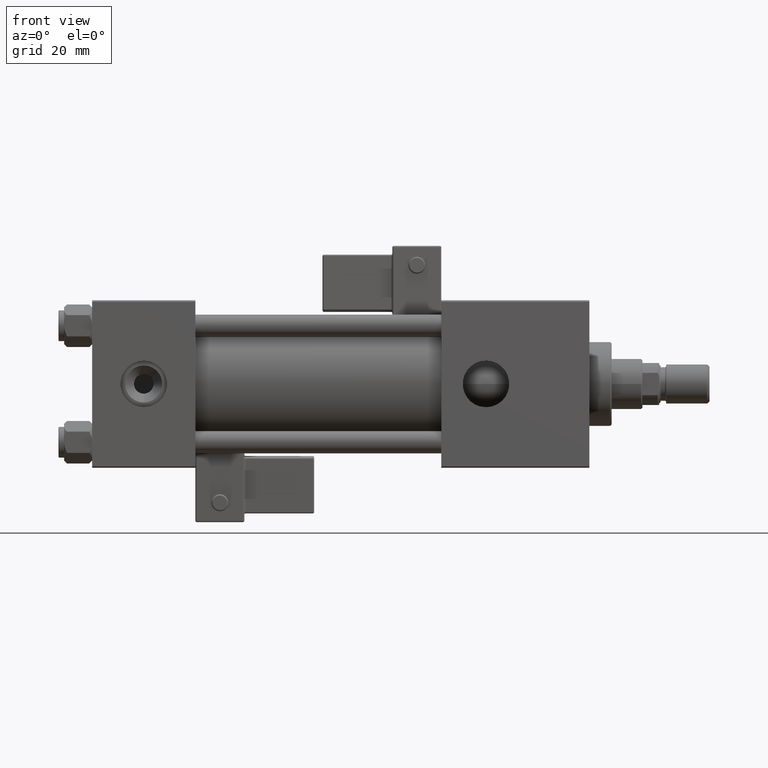
[diagram: clean part render]
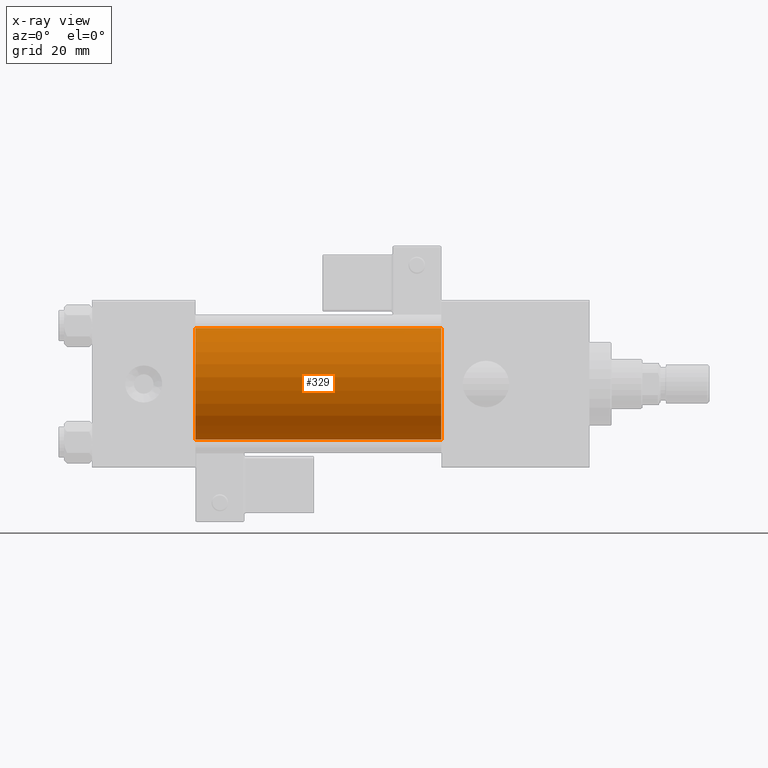
[diagram: x-ray — body ghosted, one internal face saturated and labeled with its STEP entity id]
A machine part, front view, then the same camera in x-ray: the body is ghosted and one INTERNAL B-rep face — a face not visible from any outside direction — is saturated and labeled: STEP entity #329.
In plain terms, the highlighted cylindrical surface (partial cylindrical patch) has radius 20 mm, axis along (-1, -0, -0).
Its self-contained STEP definition (entity closure, byte-faithful):
#329 = ADVANCED_FACE ( 'NONE', ( #16771 ), #7049, .F. ) ;
#370 = CARTESIAN_POINT ( 'NONE',  ( 125.0000000000000000, -1.527916156705042519E-16, -20.00000000000000000 ) ) ;
#971 = EDGE_CURVE ( 'NONE', #30841, #53575, #53900, .T. ) ;
#1319 = CARTESIAN_POINT ( 'NONE',  ( 125.0000000000000000, -2.602085213965210642E-15, 20.00000000000000000 ) ) ;
#6372 = DIRECTION ( 'NONE',  ( 0.000000000000000000, 0.000000000000000000, -1.000000000000000000 ) ) ;
#6906 = VERTEX_POINT ( 'NONE', #1319 ) ;
#7049 = CYLINDRICAL_SURFACE ( 'NONE', #16621, 20.00000000000000000 ) ;
#9793 = CIRCLE ( 'NONE', #51482, 20.00000000000000000 ) ;
#10779 = EDGE_CURVE ( 'NONE', #6906, #24375, #9793, .T. ) ;
#11228 = EDGE_CURVE ( 'NONE', #24375, #53575, #39529, .T. ) ;
#11292 = AXIS2_PLACEMENT_3D ( 'NONE', #52516, #44725, #44177 ) ;
#11307 = ORIENTED_EDGE ( 'NONE', *, *, #10779, .T. ) ;
#11482 = DIRECTION ( 'NONE',  ( -1.000000000000000000, -0.000000000000000000, -0.000000000000000000 ) ) ;
#13785 = LINE ( 'NONE', #43799, #53118 ) ;
#14546 = ORIENTED_EDGE ( 'NONE', *, *, #40329, .F. ) ;
#15140 = CARTESIAN_POINT ( 'NONE',  ( 125.0000000000000000, -1.527916156705042519E-16, -20.00000000000000000 ) ) ;
#16621 = AXIS2_PLACEMENT_3D ( 'NONE', #45659, #11482, #40954 ) ;
#16771 = FACE_OUTER_BOUND ( 'NONE', #26547, .T. ) ;
#17689 = DIRECTION ( 'NONE',  ( -1.000000000000000000, -0.000000000000000000, -0.000000000000000000 ) ) ;
#17870 = DIRECTION ( 'NONE',  ( 1.000000000000000000, 0.000000000000000000, 0.000000000000000000 ) ) ;
#24375 = VERTEX_POINT ( 'NONE', #15140 ) ;
#26547 = EDGE_LOOP ( 'NONE', ( #11307, #41919, #49416, #14546 ) ) ;
#30841 = VERTEX_POINT ( 'NONE', #37684 ) ;
#34679 = VECTOR ( 'NONE', #38977, 1000.000000000000000 ) ;
#37684 = CARTESIAN_POINT ( 'NONE',  ( 37.00000000000000000, -2.602085213965210642E-15, 20.00000000000000000 ) ) ;
#38977 = DIRECTION ( 'NONE',  ( -1.000000000000000000, -0.000000000000000000, -0.000000000000000000 ) ) ;
#39529 = LINE ( 'NONE', #370, #34679 ) ;
#40329 = EDGE_CURVE ( 'NONE', #6906, #30841, #13785, .T. ) ;
#40954 = DIRECTION ( 'NONE',  ( 0.000000000000000000, 0.000000000000000000, 1.000000000000000000 ) ) ;
#41919 = ORIENTED_EDGE ( 'NONE', *, *, #11228, .T. ) ;
#43799 = CARTESIAN_POINT ( 'NONE',  ( 125.0000000000000000, -2.602085213965210642E-15, 20.00000000000000000 ) ) ;
#44177 = DIRECTION ( 'NONE',  ( 0.000000000000000000, 0.000000000000000000, -1.000000000000000000 ) ) ;
#44725 = DIRECTION ( 'NONE',  ( 1.000000000000000000, 0.000000000000000000, 0.000000000000000000 ) ) ;
#45659 = CARTESIAN_POINT ( 'NONE',  ( 125.0000000000000000, -2.602085213965210642E-15, 0.000000000000000000 ) ) ;
#49256 = CARTESIAN_POINT ( 'NONE',  ( 37.00000000000000000, -1.527916156705042519E-16, -20.00000000000000000 ) ) ;
#49416 = ORIENTED_EDGE ( 'NONE', *, *, #971, .F. ) ;
#51479 = CARTESIAN_POINT ( 'NONE',  ( 125.0000000000000000, -2.602085213965210642E-15, 0.000000000000000000 ) ) ;
#51482 = AXIS2_PLACEMENT_3D ( 'NONE', #51479, #17870, #6372 ) ;
#52516 = CARTESIAN_POINT ( 'NONE',  ( 37.00000000000000000, -2.602085213965210642E-15, 0.000000000000000000 ) ) ;
#53118 = VECTOR ( 'NONE', #17689, 1000.000000000000000 ) ;
#53575 = VERTEX_POINT ( 'NONE', #49256 ) ;
#53900 = CIRCLE ( 'NONE', #11292, 20.00000000000000000 ) ;